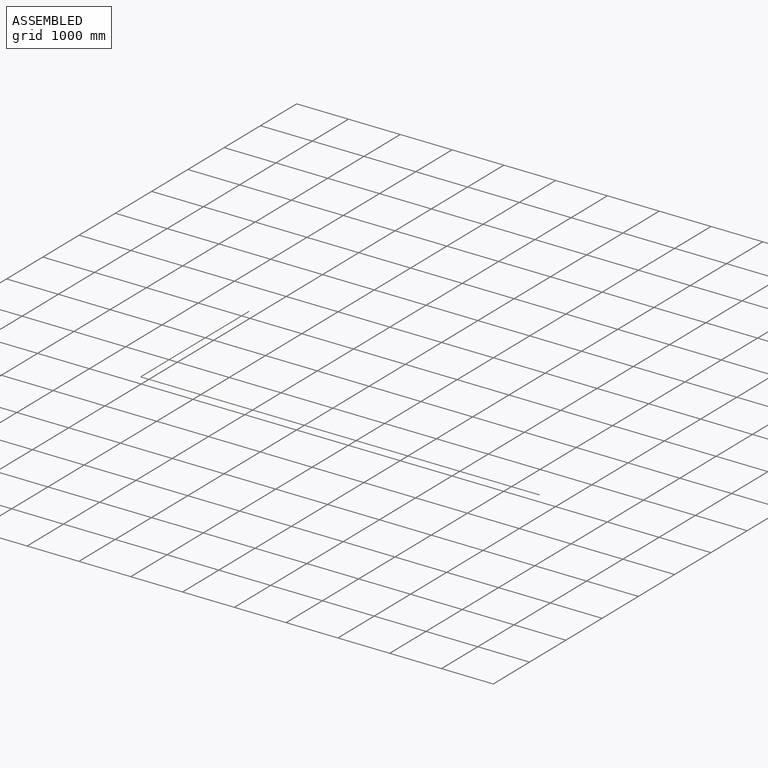
[diagram: assembled view]
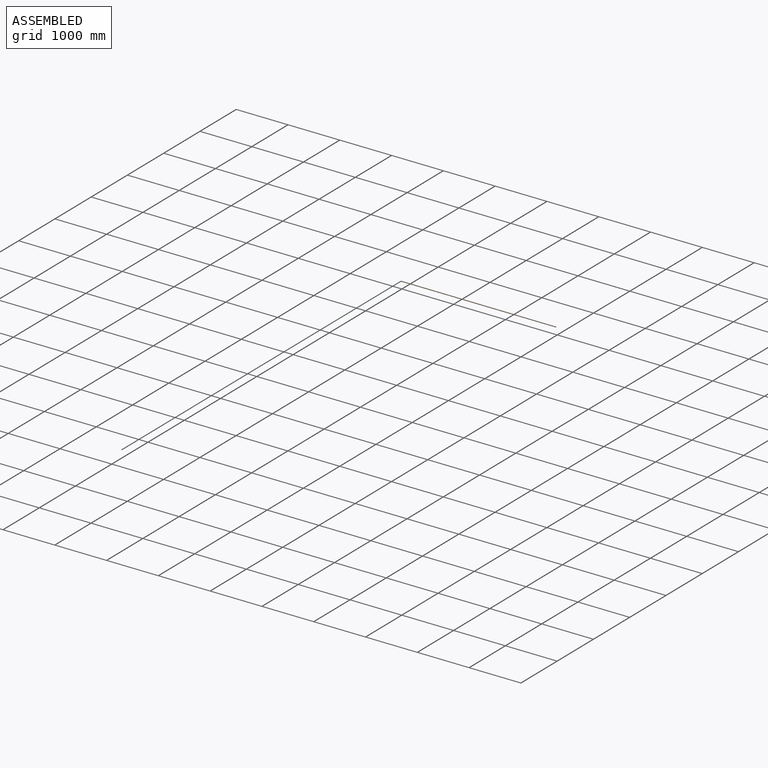
[diagram: assembled view, second angle]
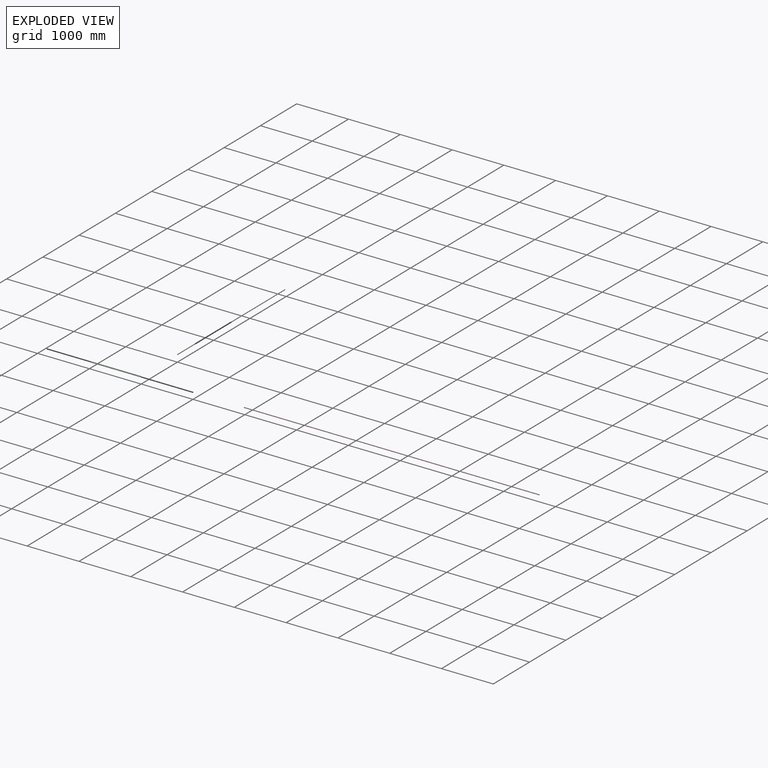
[diagram: exploded view]
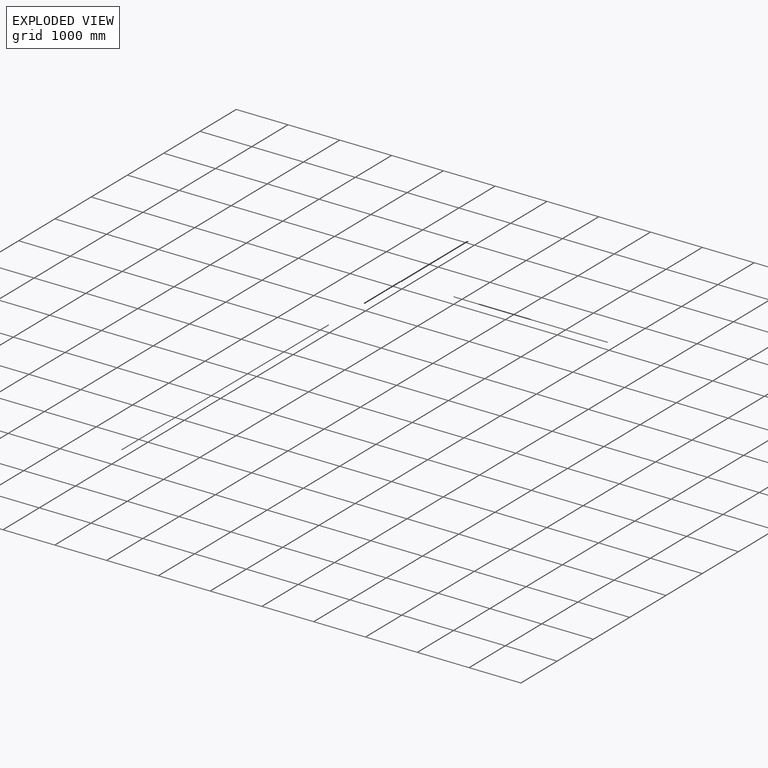
[diagram: exploded view, second angle]
ASSEMBLY  parts=4 mates=3
PART A: 5 faces, bbox 34.4x34.4x15 mm
  f0: plane 15x15mm, normal (0,-1,0), area 176.7mm2, adj f2
  f1: plane 15x15mm, normal (1,0,0), area 176.7mm2, adj f4
  f2: cylinder r=7.5mm len=15mm, axis (0,1,0), area 471.2mm2, adj f0,f3
  f3: torus R=15mm, axis (0,0,-1), area 1110.3mm2, adj f2,f4
  f4: cylinder r=7.5mm len=15mm, axis (1,0,0), area 471.2mm2, adj f1,f3
PART B: 3 faces, bbox 15x2965x15 mm
  f0: cylinder r=7.5mm len=2965mm, axis (0,-1,0), area 139722.3mm2, adj f1,f2
  f1: plane 15x15mm, normal (0,1,0), area 176.7mm2, adj f0
  f2: plane 15x15mm, normal (0,-1,0), area 176.7mm2, adj f0
PART C: 3 faces, bbox 15x1973.8x15 mm
  f0: cylinder r=7.5mm len=1973.83mm, axis (0,-1,0), area 93014.7mm2, adj f1,f2
  f1: plane 15x15mm, normal (0,1,0), area 176.7mm2, adj f0
  f2: plane 15x15mm, normal (0,-1,0), area 176.7mm2, adj f0
PART D: 3 faces, bbox 15x5700x15 mm
  f0: cylinder r=7.5mm len=5700mm, axis (0,-1,0), area 268606.2mm2, adj f1,f2
  f1: plane 15x15mm, normal (0,1,0), area 176.7mm2, adj f0
  f2: plane 15x15mm, normal (0,-1,0), area 176.7mm2, adj f0
PLACE A rot(axis=(1,0,0),180deg) t=(0,-2990.91,-1525)mm
PLACE B t=(86.43,-2990.91,-1561.59)mm
PLACE C rot(axis=(-0.58,-0.58,-0.58),120deg) t=(25,-3052.5,-1488.57)mm
PLACE D rot(axis=(0.71,-0.71,0),180deg) t=(7698.83,-2977.35,-1488.41)mm
MATE fastened D.f0 <-> C.f0  axis (-1,0,0) through (1998.83,-3015.91,-1525)mm
MATE fastened A.f2 <-> B.f0  axis (0,1,0) through (0,-2990.91,-1525)mm
MATE fastened C.f0 <-> A.f4  axis (-1,0,0) through (25,-3015.91,-1525)mm
